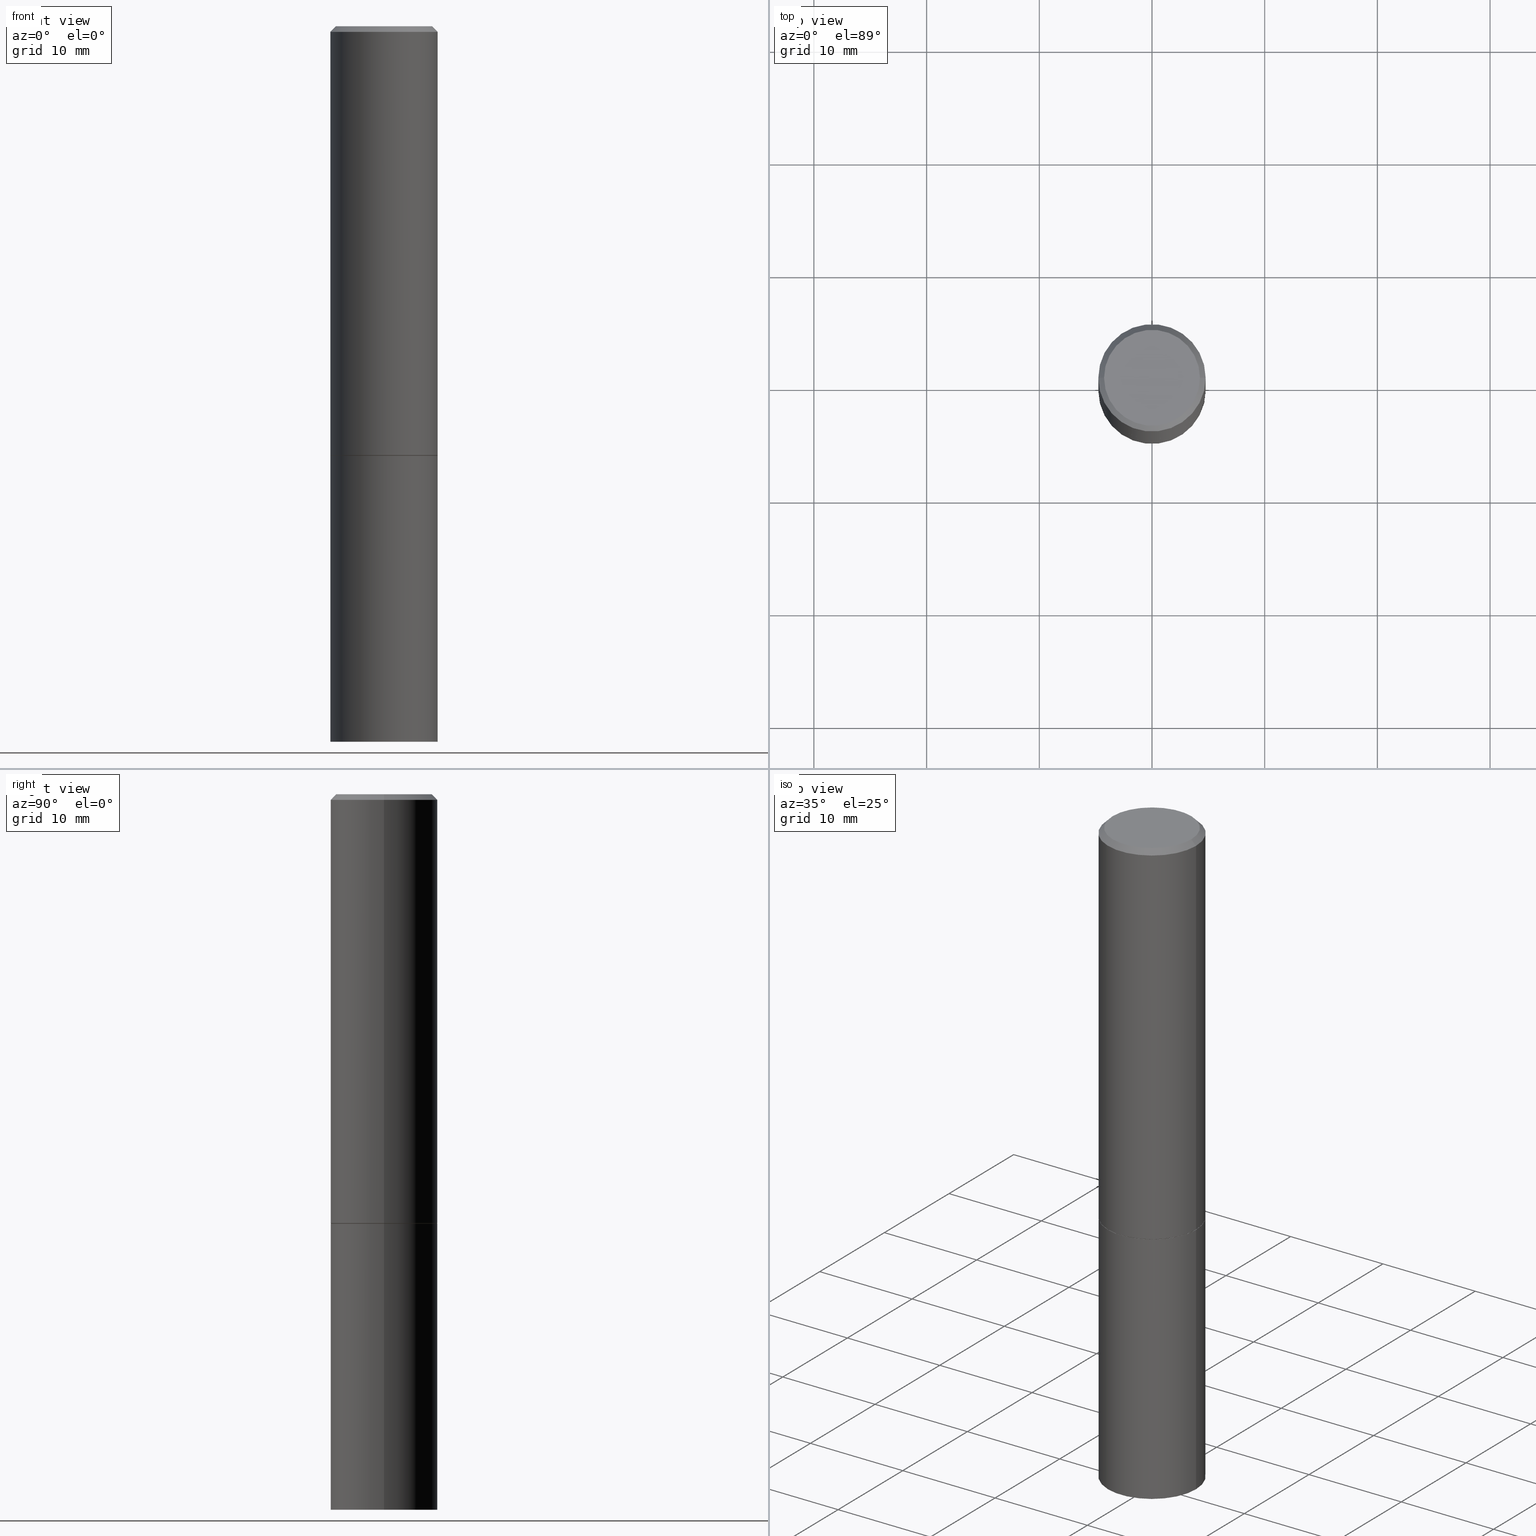
[diagram: canonical four-view strip — front | top / right | iso, engineering-drawing reading convention]
A machine part, canonical four-view strip (front | top / right | iso — engineering-drawing reading convention). The complete STEP part file that produces these views, byte-faithful:
ISO-10303-21;
HEADER;
FILE_DESCRIPTION (( 'STEP AP203' ),
    '1' );
FILE_NAME ('34624.STEP',
    '2024-02-27T16:29:27',
    ( '' ),
    ( '' ),
    'SwSTEP 2.0',
    'SolidWorks 2023',
    '' );
FILE_SCHEMA (( 'CONFIG_CONTROL_DESIGN' ));
ENDSEC;

DATA;
#1 = DIRECTION ( 'NONE',  ( 2.445468806185136597E-29, -3.491481338843145583E-15, -1.000000000000000000 ) ) ;
#2 = VECTOR ( 'NONE', #286, 39.37007874015748143 ) ;
#3 = DIRECTION ( 'NONE',  ( -2.445468806185136597E-29, 3.491481338843145583E-15, 1.000000000000000000 ) ) ;
#4 = DIRECTION ( 'NONE',  ( -2.445468806185136597E-29, 3.491481338843145583E-15, 1.000000000000000000 ) ) ;
#5 = DIRECTION ( 'NONE',  ( 2.438088387897960049E-29, -3.491481338843145188E-15, -1.000000000000000000 ) ) ;
#6 = CARTESIAN_POINT ( 'NONE',  ( 0.000000000000000000, 0.000000000000000000, 0.000000000000000000 ) ) ;
#7 = CIRCLE ( 'NONE', #261, 0.1864999999999999714 ) ;
#8 = EDGE_LOOP ( 'NONE', ( #242, #91, #341, #100 ) ) ;
#9 = CIRCLE ( 'NONE', #154, 0.1875000000000000278 ) ;
#10 = CARTESIAN_POINT ( 'NONE',  ( 0.000000000000000000, 0.000000000000000000, 0.000000000000000000 ) ) ;
#11 = CARTESIAN_POINT ( 'NONE',  ( 0.000000000000000000, 0.000000000000000000, 0.000000000000000000 ) ) ;
#12 = DIRECTION ( 'NONE',  ( -2.445468806185136597E-29, 3.491481338843145583E-15, 1.000000000000000000 ) ) ;
#13 = AXIS2_PLACEMENT_3D ( 'NONE', #150, #102, #164 ) ;
#14 = DIRECTION ( 'NONE',  ( -2.445468806185136597E-29, 3.491481338843145583E-15, 1.000000000000000000 ) ) ;
#15 = DIRECTION ( 'NONE',  ( -2.445468806185136597E-29, 3.491481338843145583E-15, 1.000000000000000000 ) ) ;
#16 = MANIFOLD_SOLID_BREP ( 'Body-Move/Copy2[2]', #41 ) ;
#17 = COORDINATED_UNIVERSAL_TIME_OFFSET ( 5, 0, .BEHIND. ) ;
#18 = MANIFOLD_SOLID_BREP ( 'Body-Move/Copy2[1]', #198 ) ;
#19 = DIRECTION ( 'NONE',  ( -2.445468806185136597E-29, 3.491481338843145583E-15, 1.000000000000000000 ) ) ;
#20 = VERTEX_POINT ( 'NONE', #285 ) ;
#21 = COORDINATED_UNIVERSAL_TIME_OFFSET ( 5, 0, .BEHIND. ) ;
#22 = ORIENTED_EDGE ( 'NONE', *, *, #232, .T. ) ;
#23 = ORGANIZATION ( 'UNSPECIFIED', 'UNSPECIFIED', '' ) ;
#24 = PLANE ( 'NONE',  #282 ) ;
#25 = ORIENTED_EDGE ( 'NONE', *, *, #352, .T. ) ;
#26 = APPROVAL_STATUS ( 'not_yet_approved' ) ;
#27 = CALENDAR_DATE ( 2024, 27, 2 ) ;
#28 = EDGE_CURVE ( 'NONE', #152, #326, #153, .T. ) ;
#29 = CIRCLE ( 'NONE', #62, 0.1864999999999999714 ) ;
#30 = FACE_OUTER_BOUND ( 'NONE', #131, .T. ) ;
#31 = AXIS2_PLACEMENT_3D ( 'NONE', #115, #87, #276 ) ;
#32 = CARTESIAN_POINT ( 'NONE',  ( 0.1875000000000000278, -6.546527510330893974E-15, -1.500000000000000222 ) ) ;
#33 = ADVANCED_FACE ( 'NONE', ( #315 ), #63, .F. ) ;
#34 = LINE ( 'NONE', #345, #228 ) ;
#35 = AXIS2_PLACEMENT_3D ( 'NONE', #296, #1, #172 ) ;
#36 = LOCAL_TIME ( 11, 29, 27.00000000000000000, #17 ) ;
#37 = CARTESIAN_POINT ( 'NONE',  ( -0.1864999999999999714, -3.912059806072132914E-15, -1.500000000000000444 ) ) ;
#38 = DIRECTION ( 'NONE',  ( 0.7071067811865466846, -7.319954787623252890E-15, -0.7071067811865483499 ) ) ;
#39 = LINE ( 'NONE', #95, #2 ) ;
#40 = ORIENTED_EDGE ( 'NONE', *, *, #308, .F. ) ;
#41 = CLOSED_SHELL ( 'NONE', ( #304, #42, #114, #202, #279, #243, #55, #267 ) ) ;
#42 = ADVANCED_FACE ( 'NONE', ( #353 ), #99, .T. ) ;
#43 = DIRECTION ( 'NONE',  ( 2.438088387897960049E-29, -3.491481338843145188E-15, -1.000000000000000000 ) ) ;
#44 = EDGE_LOOP ( 'NONE', ( #71, #104 ) ) ;
#45 = DIMENSIONAL_EXPONENTS ( 1.000000000000000000, 0.000000000000000000, 0.000000000000000000, 0.000000000000000000, 0.000000000000000000, 0.000000000000000000, 0.000000000000000000 ) ;
#46 = DIRECTION ( 'NONE',  ( -2.438088387897960049E-29, 3.491481338843145188E-15, 1.000000000000000000 ) ) ;
#47 = VERTEX_POINT ( 'NONE', #361 ) ;
#48 = CC_DESIGN_DATE_AND_TIME_ASSIGNMENT ( #52, #222, ( #170 ) ) ;
#49 = DIRECTION ( 'NONE',  ( 0.7071067811864388819, -2.468850131081119129E-15, 0.7071067811866561525 ) ) ;
#50 = EDGE_LOOP ( 'NONE', ( #218, #123, #96, #236 ) ) ;
#51 = LOCAL_TIME ( 11, 29, 27.00000000000000000, #127 ) ;
#52 = DATE_AND_TIME ( #27, #205 ) ;
#53 = CARTESIAN_POINT ( 'NONE',  ( 3.668203209277706016E-29, -5.237222008264719754E-15, -1.500000000000000444 ) ) ;
#54 = PERSON_AND_ORGANIZATION_ROLE ( 'design_supplier' ) ;
#55 = ADVANCED_FACE ( 'NONE', ( #305 ), #24, .F. ) ;
#56 = DIRECTION ( 'NONE',  ( 1.000000000000000000, 0.000000000000000000, 0.000000000000000000 ) ) ;
#57 = CC_DESIGN_APPROVAL ( #135, ( #170 ) ) ;
#58 = APPROVAL_DATE_TIME ( #337, #344 ) ;
#59 = APPLICATION_CONTEXT ( 'configuration controlled 3d designs of mechanical parts and assemblies' ) ;
#60 = DIRECTION ( 'NONE',  ( 1.000000000000000000, -6.982962677686266711E-15, 4.876176775795936914E-29 ) ) ;
#61 = FACE_OUTER_BOUND ( 'NONE', #350, .T. ) ;
#62 = AXIS2_PLACEMENT_3D ( 'NONE', #288, #128, #239 ) ;
#63 = PLANE ( 'NONE',  #290 ) ;
#64 = CC_DESIGN_PERSON_AND_ORGANIZATION_ASSIGNMENT ( #332, #199, ( #201 ) ) ;
#65 = CYLINDRICAL_SURFACE ( 'NONE', #107, 0.1875000000000000278 ) ;
#66 =( NAMED_UNIT ( * ) PLANE_ANGLE_UNIT ( ) SI_UNIT ( $, .RADIAN. ) );
#67 = VECTOR ( 'NONE', #312, 39.37007874015748143 ) ;
#68 = CC_DESIGN_PERSON_AND_ORGANIZATION_ASSIGNMENT ( #134, #268, ( #359 ) ) ;
#69 = ORIENTED_EDGE ( 'NONE', *, *, #272, .F. ) ;
#70 = FACE_OUTER_BOUND ( 'NONE', #8, .T. ) ;
#71 = ORIENTED_EDGE ( 'NONE', *, *, #351, .T. ) ;
#72 =( LENGTH_UNIT ( ) NAMED_UNIT ( * ) SI_UNIT ( $, .METRE. ) );
#73 = VERTEX_POINT ( 'NONE', #133 ) ;
#74 = CONICAL_SURFACE ( 'NONE', #35, 0.1874999999999998057, 0.7853981633974471688 ) ;
#75 = EDGE_LOOP ( 'NONE', ( #321, #25, #163, #317 ) ) ;
#76 = DIRECTION ( 'NONE',  ( -1.000000000000000000, 6.982962677686265922E-15, -4.876176775795935793E-29 ) ) ;
#77 = PERSON_AND_ORGANIZATION_ROLE ( 'classification_officer' ) ;
#78 = ORIENTED_EDGE ( 'NONE', *, *, #94, .T. ) ;
#79 = PERSON_AND_ORGANIZATION ( #254, #23 ) ;
#80 = CARTESIAN_POINT ( 'NONE',  ( 0.000000000000000000, 0.000000000000000000, 0.000000000000000000 ) ) ;
#81 = AXIS2_PLACEMENT_3D ( 'NONE', #313, #203, #204 ) ;
#82 = APPLICATION_PROTOCOL_DEFINITION ( 'international standard', 'config_control_design', 1994, #196 ) ;
#83 = PERSON_AND_ORGANIZATION ( #254, #23 ) ;
#84 = AXIS2_PLACEMENT_3D ( 'NONE', #85, #280, #86 ) ;
#85 = CARTESIAN_POINT ( 'NONE',  ( 0.000000000000000000, 0.000000000000000000, 0.000000000000000000 ) ) ;
#86 = DIRECTION ( 'NONE',  ( 1.000000000000000000, -6.982962677686266711E-15, 4.876176775795936914E-29 ) ) ;
#87 = DIRECTION ( 'NONE',  ( -2.445468806185136597E-29, 3.491481338843145583E-15, 1.000000000000000000 ) ) ;
#88 = AXIS2_PLACEMENT_3D ( 'NONE', #138, #105, #331 ) ;
#89 = FACE_OUTER_BOUND ( 'NONE', #190, .T. ) ;
#90 = CARTESIAN_POINT ( 'NONE',  ( 1.169646248512448412E-15, 0.1674999999999998157, -5.848231242562262767E-16 ) ) ;
#91 = ORIENTED_EDGE ( 'NONE', *, *, #185, .T. ) ;
#92 = AXIS2_PLACEMENT_3D ( 'NONE', #340, #146, #251 ) ;
#93 = FACE_OUTER_BOUND ( 'NONE', #166, .T. ) ;
#94 = EDGE_CURVE ( 'NONE', #73, #195, #193, .T. ) ;
#95 = CARTESIAN_POINT ( 'NONE',  ( 0.1875000000000000278, -1.309305502066175008E-15, 9.142831454617381013E-30 ) ) ;
#96 = ORIENTED_EDGE ( 'NONE', *, *, #28, .F. ) ;
#97 = CARTESIAN_POINT ( 'NONE',  ( -0.1674999999999998157, 1.204561061900879272E-15, -8.301862719484101980E-30 ) ) ;
#98 = ORIENTED_EDGE ( 'NONE', *, *, #248, .T. ) ;
#99 = CYLINDRICAL_SURFACE ( 'NONE', #88, 0.1874999999999999167 ) ;
#100 = ORIENTED_EDGE ( 'NONE', *, *, #363, .F. ) ;
#101 = VECTOR ( 'NONE', #246, 39.37007874015748143 ) ;
#102 = DIRECTION ( 'NONE',  ( -2.445468806185136597E-29, 3.491481338843145583E-15, 1.000000000000000000 ) ) ;
#103 = CIRCLE ( 'NONE', #122, 0.1875000000000000278 ) ;
#104 = ORIENTED_EDGE ( 'NONE', *, *, #363, .T. ) ;
#105 = DIRECTION ( 'NONE',  ( -2.445468806185136597E-29, 3.491481338843145583E-15, 1.000000000000000000 ) ) ;
#106 = APPROVAL_STATUS ( 'not_yet_approved' ) ;
#107 = AXIS2_PLACEMENT_3D ( 'NONE', #10, #19, #159 ) ;
#108 = EDGE_CURVE ( 'NONE', #195, #47, #141, .T. ) ;
#109 = CALENDAR_DATE ( 2024, 27, 2 ) ;
#110 = ADVANCED_FACE ( 'NONE', ( #89 ), #130, .T. ) ;
#111 = DIRECTION ( 'NONE',  ( 1.000000000000000000, -6.982962677686266711E-15, 0.000000000000000000 ) ) ;
#112 = CARTESIAN_POINT ( 'NONE',  ( 6.113672015462842613E-29, -8.728703347107864943E-15, -2.500000000000000000 ) ) ;
#113 = DIRECTION ( 'NONE',  ( -2.445468806185136597E-29, 3.491481338843145583E-15, 1.000000000000000000 ) ) ;
#114 = ADVANCED_FACE ( 'NONE', ( #192 ), #74, .T. ) ;
#115 = CARTESIAN_POINT ( 'NONE',  ( 4.890937612370283668E-31, -6.982962677686305168E-17, -0.02000000000000004205 ) ) ;
#116 = DIRECTION ( 'NONE',  ( -1.000000000000000000, 6.982962677686265922E-15, -4.876176775795935793E-29 ) ) ;
#117 = DIRECTION ( 'NONE',  ( 1.000000000000000000, -6.982962677686266711E-15, 0.000000000000000000 ) ) ;
#118 = LINE ( 'NONE', #262, #244 ) ;
#119 = ORIENTED_EDGE ( 'NONE', *, *, #336, .F. ) ;
#120 = CARTESIAN_POINT ( 'NONE',  ( 0.1875000000000000278, -1.003800884917403995E-14, -2.500000000000000000 ) ) ;
#121 = DIRECTION ( 'NONE',  ( -2.445468806185136877E-29, 3.491481338843145188E-15, 1.000000000000000000 ) ) ;
#122 = AXIS2_PLACEMENT_3D ( 'NONE', #231, #216, #347 ) ;
#123 = ORIENTED_EDGE ( 'NONE', *, *, #333, .T. ) ;
#124 = DIRECTION ( 'NONE',  ( 1.000000000000000000, -6.982962677686266711E-15, 0.000000000000000000 ) ) ;
#125 = CARTESIAN_POINT ( 'NONE',  ( -0.1864999999999999714, -3.906761351723910512E-15, -1.500000000000000444 ) ) ;
#126 = ORIENTED_EDGE ( 'NONE', *, *, #185, .F. ) ;
#127 = COORDINATED_UNIVERSAL_TIME_OFFSET ( 5, 0, .BEHIND. ) ;
#128 = DIRECTION ( 'NONE',  ( -2.445468806185136597E-29, 3.491481338843145583E-15, 1.000000000000000000 ) ) ;
#129 = ORIENTED_EDGE ( 'NONE', *, *, #169, .T. ) ;
#130 = PLANE ( 'NONE',  #221 ) ;
#131 = EDGE_LOOP ( 'NONE', ( #295, #182, #78, #210 ) ) ;
#132 = CC_DESIGN_APPROVAL ( #344, ( #142 ) ) ;
#133 = CARTESIAN_POINT ( 'NONE',  ( 0.1864999999999999714, -6.539544547653208748E-15, -1.500000000000000444 ) ) ;
#134 = PERSON_AND_ORGANIZATION ( #254, #23 ) ;
#135 = APPROVAL ( #26, 'UNSPECIFIED' ) ;
#136 = ORIENTED_EDGE ( 'NONE', *, *, #200, .T. ) ;
#137 = ADVANCED_BREP_SHAPE_REPRESENTATION ( '34624', ( #18, #16, #360 ), #181 ) ;
#138 = CARTESIAN_POINT ( 'NONE',  ( 0.000000000000000000, 0.000000000000000000, 0.000000000000000000 ) ) ;
#139 = APPROVAL_DATE_TIME ( #168, #322 ) ;
#140 = MECHANICAL_CONTEXT ( 'NONE', #59, 'mechanical' ) ;
#141 = CIRCLE ( 'NONE', #13, 0.1875000000000000278 ) ;
#142 = SECURITY_CLASSIFICATION ( '', '', #274 ) ;
#143 = EDGE_CURVE ( 'NONE', #252, #20, #253, .T. ) ;
#144 = DATE_TIME_ROLE ( 'classification_date' ) ;
#145 = CARTESIAN_POINT ( 'NONE',  ( 0.1875000000000000278, -6.543036028992050967E-15, -1.499000000000000110 ) ) ;
#146 = DIRECTION ( 'NONE',  ( 2.445468806185136597E-29, -3.491481338843145583E-15, -1.000000000000000000 ) ) ;
#147 = AXIS2_PLACEMENT_3D ( 'NONE', #230, #179, #265 ) ;
#148 = PERSON_AND_ORGANIZATION ( #254, #23 ) ;
#149 = CC_DESIGN_DATE_AND_TIME_ASSIGNMENT ( #250, #144, ( #142 ) ) ;
#150 = CARTESIAN_POINT ( 'NONE',  ( 3.665757740471519853E-29, -5.233730526925875958E-15, -1.499000000000000110 ) ) ;
#151 = CARTESIAN_POINT ( 'NONE',  ( 1.309305502066211690E-15, 0.1874999999999947820, -1.500000000000000666 ) ) ;
#152 = VERTEX_POINT ( 'NONE', #223 ) ;
#153 = CIRCLE ( 'NONE', #255, 0.1874999999999998057 ) ;
#154 = AXIS2_PLACEMENT_3D ( 'NONE', #235, #15, #354 ) ;
#155 = UNCERTAINTY_MEASURE_WITH_UNIT (LENGTH_MEASURE( 1.000000000000000082E-05 ), #319, 'distance_accuracy_value', 'NONE');
#156 = CYLINDRICAL_SURFACE ( 'NONE', #330, 0.1874999999999999167 ) ;
#157 = FACE_OUTER_BOUND ( 'NONE', #75, .T. ) ;
#158 = VECTOR ( 'NONE', #211, 39.37007874015748143 ) ;
#159 = DIRECTION ( 'NONE',  ( 1.000000000000000000, -6.982962677686265922E-15, 4.876176775795935793E-29 ) ) ;
#160 = CC_DESIGN_PERSON_AND_ORGANIZATION_ASSIGNMENT ( #194, #197, ( #170 ) ) ;
#161 = EDGE_LOOP ( 'NONE', ( #298, #269, #240, #362 ) ) ;
#162 = DIRECTION ( 'NONE',  ( -2.445468806185136877E-29, 3.491481338843145188E-15, 1.000000000000000000 ) ) ;
#163 = ORIENTED_EDGE ( 'NONE', *, *, #346, .T. ) ;
#164 = DIRECTION ( 'NONE',  ( 1.000000000000000000, -6.982962677686266711E-15, 0.000000000000000000 ) ) ;
#165 = DIRECTION ( 'NONE',  ( 1.000000000000000000, -6.982962677686265922E-15, 4.876176775795935793E-29 ) ) ;
#166 = EDGE_LOOP ( 'NONE', ( #215, #217, #323, #238 ) ) ;
#167 = AXIS2_PLACEMENT_3D ( 'NONE', #90, #43, #186 ) ;
#168 = DATE_AND_TIME ( #334, #36 ) ;
#169 = EDGE_CURVE ( 'NONE', #187, #355, #325, .T. ) ;
#170 = PRODUCT_DEFINITION ( 'UNKNOWN', '', #201, #213 ) ;
#171 = CIRCLE ( 'NONE', #147, 0.1875000000000000278 ) ;
#172 = DIRECTION ( 'NONE',  ( -1.000000000000000000, 6.982962677686266711E-15, 0.000000000000000000 ) ) ;
#173 = EDGE_CURVE ( 'NONE', #270, #252, #233, .T. ) ;
#174 = CALENDAR_DATE ( 2024, 27, 2 ) ;
#175 = CARTESIAN_POINT ( 'NONE',  ( 0.000000000000000000, 0.000000000000000000, 0.000000000000000000 ) ) ;
#176 = CC_DESIGN_SECURITY_CLASSIFICATION ( #142, ( #201 ) ) ;
#177 = FACE_OUTER_BOUND ( 'NONE', #343, .T. ) ;
#178 = DIRECTION ( 'NONE',  ( -2.445468806185136597E-29, 3.491481338843145583E-15, 1.000000000000000000 ) ) ;
#179 = DIRECTION ( 'NONE',  ( -2.445468806185136597E-29, 3.491481338843145583E-15, 1.000000000000000000 ) ) ;
#180 = CONICAL_SURFACE ( 'NONE', #92, 0.1874999999999998057, 0.7853981633974471688 ) ;
#181 =( GEOMETRIC_REPRESENTATION_CONTEXT ( 3 ) GLOBAL_UNCERTAINTY_ASSIGNED_CONTEXT ( ( #155 ) ) GLOBAL_UNIT_ASSIGNED_CONTEXT ( ( #319, #66, #287 ) ) REPRESENTATION_CONTEXT ( 'NONE', 'WORKASPACE' ) );
#182 = ORIENTED_EDGE ( 'NONE', *, *, #308, .T. ) ;
#183 = CARTESIAN_POINT ( 'NONE',  ( 0.1874999999999998057, -1.356173001359023888E-15, -0.02000000000000004205 ) ) ;
#184 = PRODUCT_DEFINITION_SHAPE ( 'NONE', 'NONE',  #170 ) ;
#185 = EDGE_CURVE ( 'NONE', #252, #270, #299, .T. ) ;
#186 = DIRECTION ( 'NONE',  ( -1.000000000000000000, 6.982962677686265922E-15, -4.876176775795935793E-29 ) ) ;
#187 = VERTEX_POINT ( 'NONE', #339 ) ;
#188 = AXIS2_PLACEMENT_3D ( 'NONE', #342, #4, #111 ) ;
#189 = DIRECTION ( 'NONE',  ( 1.000000000000000000, -6.982962677686265922E-15, 4.876176775795935793E-29 ) ) ;
#190 = EDGE_LOOP ( 'NONE', ( #241, #126 ) ) ;
#191 = ORIENTED_EDGE ( 'NONE', *, *, #324, .F. ) ;
#192 = FACE_OUTER_BOUND ( 'NONE', #161, .T. ) ;
#193 = LINE ( 'NONE', #297, #338 ) ;
#194 = PERSON_AND_ORGANIZATION ( #254, #23 ) ;
#195 = VERTEX_POINT ( 'NONE', #145 ) ;
#196 = APPLICATION_CONTEXT ( 'configuration controlled 3d designs of mechanical parts and assemblies' ) ;
#197 = PERSON_AND_ORGANIZATION_ROLE ( 'creator' ) ;
#198 = CLOSED_SHELL ( 'NONE', ( #259, #110, #33, #335 ) ) ;
#199 = PERSON_AND_ORGANIZATION_ROLE ( 'creator' ) ;
#200 = EDGE_CURVE ( 'NONE', #355, #187, #275, .T. ) ;
#201 = PRODUCT_DEFINITION_FORMATION_WITH_SPECIFIED_SOURCE ( 'ANY', '', #359, .NOT_KNOWN. ) ;
#202 = ADVANCED_FACE ( 'NONE', ( #247 ), #180, .T. ) ;
#203 = DIRECTION ( 'NONE',  ( -2.445468806185136597E-29, 3.491481338843145583E-15, 1.000000000000000000 ) ) ;
#204 = DIRECTION ( 'NONE',  ( 1.000000000000000000, -6.982962677686269077E-15, 0.000000000000000000 ) ) ;
#205 = LOCAL_TIME ( 11, 29, 27.00000000000000000, #21 ) ;
#206 = CYLINDRICAL_SURFACE ( 'NONE', #318, 0.1875000000000000278 ) ;
#207 = CARTESIAN_POINT ( 'NONE',  ( 1.309305502066236145E-15, 0.1874999999999912847, -2.500000000000000444 ) ) ;
#208 = CC_DESIGN_PERSON_AND_ORGANIZATION_ASSIGNMENT ( #328, #77, ( #142 ) ) ;
#209 = CARTESIAN_POINT ( 'NONE',  ( -0.1874999999999998057, 1.239475875289310527E-15, -0.02000000000000004205 ) ) ;
#210 = ORIENTED_EDGE ( 'NONE', *, *, #352, .F. ) ;
#211 = DIRECTION ( 'NONE',  ( -0.7071067811864388819, 7.493145998869961307E-15, 0.7071067811866561525 ) ) ;
#212 = APPROVAL_PERSON_ORGANIZATION ( #294, #322, #300 ) ;
#213 = DESIGN_CONTEXT ( 'detailed design', #196, 'design' ) ;
#214 = DIRECTION ( 'NONE',  ( 1.000000000000000000, -6.982962677686269077E-15, 0.000000000000000000 ) ) ;
#215 = ORIENTED_EDGE ( 'NONE', *, *, #324, .T. ) ;
#216 = DIRECTION ( 'NONE',  ( -2.445468806185136597E-29, 3.491481338843145583E-15, 1.000000000000000000 ) ) ;
#217 = ORIENTED_EDGE ( 'NONE', *, *, #273, .T. ) ;
#218 = ORIENTED_EDGE ( 'NONE', *, *, #108, .T. ) ;
#219 = ORIENTED_EDGE ( 'NONE', *, *, #200, .F. ) ;
#220 = APPLICATION_PROTOCOL_DEFINITION ( 'international standard', 'config_control_design', 1994, #59 ) ;
#221 = AXIS2_PLACEMENT_3D ( 'NONE', #207, #327, #76 ) ;
#222 = DATE_TIME_ROLE ( 'creation_date' ) ;
#223 = CARTESIAN_POINT ( 'NONE',  ( 0.1874999999999998057, -1.356173001359023888E-15, -0.02000000000000004205 ) ) ;
#224 = CIRCLE ( 'NONE', #31, 0.1874999999999998057 ) ;
#225 = APPROVAL_STATUS ( 'not_yet_approved' ) ;
#226 = COORDINATED_UNIVERSAL_TIME_OFFSET ( 5, 0, .BEHIND. ) ;
#227 = LINE ( 'NONE', #311, #67 ) ;
#228 = VECTOR ( 'NONE', #121, 39.37007874015748143 ) ;
#229 = CARTESIAN_POINT ( 'NONE',  ( -0.1875000000000000278, -5.650695048136103317E-15, -2.500000000000000000 ) ) ;
#230 = CARTESIAN_POINT ( 'NONE',  ( 3.668203209277704895E-29, -5.237222008264718177E-15, -1.500000000000000222 ) ) ;
#231 = CARTESIAN_POINT ( 'NONE',  ( 3.668203209277704895E-29, -5.237222008264718177E-15, -1.500000000000000222 ) ) ;
#232 = EDGE_CURVE ( 'NONE', #326, #152, #224, .T. ) ;
#233 = CIRCLE ( 'NONE', #358, 0.1875000000000000278 ) ;
#234 = CARTESIAN_POINT ( 'NONE',  ( 4.890937612370283668E-31, -6.982962677686305168E-17, -0.02000000000000004205 ) ) ;
#235 = CARTESIAN_POINT ( 'NONE',  ( 3.665757740471519853E-29, -5.233730526925875958E-15, -1.499000000000000110 ) ) ;
#236 = ORIENTED_EDGE ( 'NONE', *, *, #346, .F. ) ;
#237 = LINE ( 'NONE', #183, #314 ) ;
#238 = ORIENTED_EDGE ( 'NONE', *, *, #94, .F. ) ;
#239 = DIRECTION ( 'NONE',  ( 1.000000000000000000, -6.982962677686269077E-15, 0.000000000000000000 ) ) ;
#240 = ORIENTED_EDGE ( 'NONE', *, *, #28, .T. ) ;
#241 = ORIENTED_EDGE ( 'NONE', *, *, #173, .F. ) ;
#242 = ORIENTED_EDGE ( 'NONE', *, *, #143, .F. ) ;
#243 = ADVANCED_FACE ( 'NONE', ( #30 ), #365, .T. ) ;
#244 = VECTOR ( 'NONE', #162, 39.37007874015748143 ) ;
#245 = APPROVAL_ROLE ( '' ) ;
#246 = DIRECTION ( 'NONE',  ( -2.445468806185136877E-29, 3.491481338843145188E-15, 1.000000000000000000 ) ) ;
#247 = FACE_OUTER_BOUND ( 'NONE', #329, .T. ) ;
#248 = EDGE_CURVE ( 'NONE', #355, #326, #227, .T. ) ;
#249 = CARTESIAN_POINT ( 'NONE',  ( -0.1875000000000000278, 1.332267629550188046E-15, -9.223003294227947991E-30 ) ) ;
#250 = DATE_AND_TIME ( #174, #51 ) ;
#251 = DIRECTION ( 'NONE',  ( -1.000000000000000000, 6.982962677686266711E-15, 0.000000000000000000 ) ) ;
#252 = VERTEX_POINT ( 'NONE', #229 ) ;
#253 = LINE ( 'NONE', #249, #101 ) ;
#254 = PERSON ( 'UNSPECIFIED', 'UNSPECIFIED', 'UNSPECIFIED', ('UNSPECIFIED'), ('UNSPECIFIED'), ('UNSPECIFIED') ) ;
#255 = AXIS2_PLACEMENT_3D ( 'NONE', #234, #14, #124 ) ;
#256 = CC_DESIGN_APPROVAL ( #322, ( #201 ) ) ;
#257 = ORIENTED_EDGE ( 'NONE', *, *, #351, .F. ) ;
#258 = DIRECTION ( 'NONE',  ( -2.445468806185136597E-29, 3.491481338843145583E-15, 1.000000000000000000 ) ) ;
#259 = ADVANCED_FACE ( 'NONE', ( #61 ), #206, .T. ) ;
#260 = CARTESIAN_POINT ( 'NONE',  ( 3.668203209277706016E-29, -5.237222008264719754E-15, -1.500000000000000444 ) ) ;
#261 = AXIS2_PLACEMENT_3D ( 'NONE', #349, #258, #356 ) ;
#262 = CARTESIAN_POINT ( 'NONE',  ( 0.1874999999999999167, -1.309305502066174219E-15, 9.142831454617375408E-30 ) ) ;
#263 = VERTEX_POINT ( 'NONE', #32 ) ;
#264 = APPROVAL_ROLE ( '' ) ;
#265 = DIRECTION ( 'NONE',  ( 1.000000000000000000, -6.982962677686266711E-15, 0.000000000000000000 ) ) ;
#266 = ORIENTED_EDGE ( 'NONE', *, *, #173, .T. ) ;
#267 = ADVANCED_FACE ( 'NONE', ( #177 ), #284, .F. ) ;
#268 = PERSON_AND_ORGANIZATION_ROLE ( 'design_owner' ) ;
#269 = ORIENTED_EDGE ( 'NONE', *, *, #336, .T. ) ;
#270 = VERTEX_POINT ( 'NONE', #120 ) ;
#271 = CALENDAR_DATE ( 2024, 27, 2 ) ;
#272 = EDGE_CURVE ( 'NONE', #270, #263, #39, .T. ) ;
#273 = EDGE_CURVE ( 'NONE', #293, #47, #316, .T. ) ;
#274 = SECURITY_CLASSIFICATION_LEVEL ( 'unclassified' ) ;
#275 = CIRCLE ( 'NONE', #84, 0.1674999999999998157 ) ;
#276 = DIRECTION ( 'NONE',  ( 1.000000000000000000, -6.982962677686266711E-15, 0.000000000000000000 ) ) ;
#277 = PRODUCT_RELATED_PRODUCT_CATEGORY ( 'detail', '', ( #359 ) ) ;
#278 = SHAPE_DEFINITION_REPRESENTATION ( #184, #137 ) ;
#279 = ADVANCED_FACE ( 'NONE', ( #157 ), #156, .T. ) ;
#280 = DIRECTION ( 'NONE',  ( -2.445468806185136597E-29, 3.491481338843145583E-15, 1.000000000000000000 ) ) ;
#281 = DIRECTION ( 'NONE',  ( 1.000000000000000000, -6.982962677686265922E-15, 4.876176775795935793E-29 ) ) ;
#282 = AXIS2_PLACEMENT_3D ( 'NONE', #53, #46, #165 ) ;
#283 = APPROVAL_PERSON_ORGANIZATION ( #148, #344, #245 ) ;
#284 = PLANE ( 'NONE',  #167 ) ;
#285 = CARTESIAN_POINT ( 'NONE',  ( -0.1875000000000000278, -5.650695048136103317E-15, -1.500000000000000222 ) ) ;
#286 = DIRECTION ( 'NONE',  ( -2.445468806185136877E-29, 3.491481338843145188E-15, 1.000000000000000000 ) ) ;
#287 =( NAMED_UNIT ( * ) SI_UNIT ( $, .STERADIAN. ) SOLID_ANGLE_UNIT ( ) );
#288 = CARTESIAN_POINT ( 'NONE',  ( 3.668203209277706016E-29, -5.237222008264719754E-15, -1.500000000000000444 ) ) ;
#289 = EDGE_LOOP ( 'NONE', ( #191, #40 ) ) ;
#290 = AXIS2_PLACEMENT_3D ( 'NONE', #151, #5, #116 ) ;
#291 = LOCAL_TIME ( 11, 29, 27.00000000000000000, #306 ) ;
#292 = LENGTH_MEASURE_WITH_UNIT ( LENGTH_MEASURE( 0.02539999999999999897 ), #72 );
#293 = VERTEX_POINT ( 'NONE', #125 ) ;
#294 = PERSON_AND_ORGANIZATION ( #254, #23 ) ;
#295 = ORIENTED_EDGE ( 'NONE', *, *, #273, .F. ) ;
#296 = CARTESIAN_POINT ( 'NONE',  ( 4.890937612370283668E-31, -6.982962677686305168E-17, -0.02000000000000004205 ) ) ;
#297 = CARTESIAN_POINT ( 'NONE',  ( 0.1864999999999999714, -6.539544547653208748E-15, -1.500000000000000444 ) ) ;
#298 = ORIENTED_EDGE ( 'NONE', *, *, #169, .F. ) ;
#299 = CIRCLE ( 'NONE', #188, 0.1875000000000000278 ) ;
#300 = APPROVAL_ROLE ( '' ) ;
#301 = CONICAL_SURFACE ( 'NONE', #348, 0.1864999999999999714, 0.7853981633972946241 ) ;
#302 = DIRECTION ( 'NONE',  ( 0.000000000000000000, 0.000000000000000000, 1.000000000000000000 ) ) ;
#303 = APPROVAL_PERSON_ORGANIZATION ( #79, #135, #264 ) ;
#304 = ADVANCED_FACE ( 'NONE', ( #93 ), #301, .T. ) ;
#305 = FACE_OUTER_BOUND ( 'NONE', #289, .T. ) ;
#306 = COORDINATED_UNIVERSAL_TIME_OFFSET ( 5, 0, .BEHIND. ) ;
#307 = APPROVAL_DATE_TIME ( #366, #135 ) ;
#308 = EDGE_CURVE ( 'NONE', #293, #73, #29, .T. ) ;
#309 = AXIS2_PLACEMENT_3D ( 'NONE', #6, #113, #60 ) ;
#310 = LOCAL_TIME ( 11, 29, 27.00000000000000000, #226 ) ;
#311 = CARTESIAN_POINT ( 'NONE',  ( -0.1874999999999998057, 1.239475875289310527E-15, -0.02000000000000004205 ) ) ;
#312 = DIRECTION ( 'NONE',  ( -0.7071067811865466846, 2.468850131082247989E-15, -0.7071067811865483499 ) ) ;
#313 = CARTESIAN_POINT ( 'NONE',  ( 3.668203209277706016E-29, -5.237222008264719754E-15, -1.500000000000000444 ) ) ;
#314 = VECTOR ( 'NONE', #38, 39.37007874015748143 ) ;
#315 = FACE_OUTER_BOUND ( 'NONE', #44, .T. ) ;
#316 = LINE ( 'NONE', #37, #158 ) ;
#317 = ORIENTED_EDGE ( 'NONE', *, *, #232, .F. ) ;
#318 = AXIS2_PLACEMENT_3D ( 'NONE', #175, #178, #281 ) ;
#319 =( CONVERSION_BASED_UNIT ( 'INCH', #292 ) LENGTH_UNIT ( ) NAMED_UNIT ( #45 ) );
#320 = DIRECTION ( 'NONE',  ( -2.445468806185136597E-29, 3.491481338843145583E-15, 1.000000000000000000 ) ) ;
#321 = ORIENTED_EDGE ( 'NONE', *, *, #333, .F. ) ;
#322 = APPROVAL ( #106, 'UNSPECIFIED' ) ;
#323 = ORIENTED_EDGE ( 'NONE', *, *, #108, .F. ) ;
#324 = EDGE_CURVE ( 'NONE', #73, #293, #7, .T. ) ;
#325 = CIRCLE ( 'NONE', #309, 0.1674999999999998157 ) ;
#326 = VERTEX_POINT ( 'NONE', #209 ) ;
#327 = DIRECTION ( 'NONE',  ( 2.438088387897960049E-29, -3.491481338843145188E-15, -1.000000000000000000 ) ) ;
#328 = PERSON_AND_ORGANIZATION ( #254, #23 ) ;
#329 = EDGE_LOOP ( 'NONE', ( #119, #219, #98, #22 ) ) ;
#330 = AXIS2_PLACEMENT_3D ( 'NONE', #11, #320, #189 ) ;
#331 = DIRECTION ( 'NONE',  ( 1.000000000000000000, -6.982962677686265922E-15, 4.876176775795935793E-29 ) ) ;
#332 = PERSON_AND_ORGANIZATION ( #254, #23 ) ;
#333 = EDGE_CURVE ( 'NONE', #47, #326, #34, .T. ) ;
#334 = CALENDAR_DATE ( 2024, 27, 2 ) ;
#335 = ADVANCED_FACE ( 'NONE', ( #70 ), #65, .T. ) ;
#336 = EDGE_CURVE ( 'NONE', #187, #152, #237, .T. ) ;
#337 = DATE_AND_TIME ( #109, #310 ) ;
#338 = VECTOR ( 'NONE', #49, 39.37007874015748143 ) ;
#339 = CARTESIAN_POINT ( 'NONE',  ( 0.1674999999999998157, -1.252653207992877105E-15, 8.469775550109232378E-30 ) ) ;
#340 = CARTESIAN_POINT ( 'NONE',  ( 4.890937612370283668E-31, -6.982962677686305168E-17, -0.02000000000000004205 ) ) ;
#341 = ORIENTED_EDGE ( 'NONE', *, *, #272, .T. ) ;
#342 = CARTESIAN_POINT ( 'NONE',  ( 6.113672015462842613E-29, -8.728703347107864943E-15, -2.500000000000000000 ) ) ;
#343 = EDGE_LOOP ( 'NONE', ( #136, #129 ) ) ;
#344 = APPROVAL ( #225, 'UNSPECIFIED' ) ;
#345 = CARTESIAN_POINT ( 'NONE',  ( -0.1874999999999999167, 1.332267629550187257E-15, -9.223003294227943787E-30 ) ) ;
#346 = EDGE_CURVE ( 'NONE', #195, #152, #118, .T. ) ;
#347 = DIRECTION ( 'NONE',  ( 1.000000000000000000, -6.982962677686266711E-15, 0.000000000000000000 ) ) ;
#348 = AXIS2_PLACEMENT_3D ( 'NONE', #260, #12, #214 ) ;
#349 = CARTESIAN_POINT ( 'NONE',  ( 3.668203209277706016E-29, -5.237222008264719754E-15, -1.500000000000000444 ) ) ;
#350 = EDGE_LOOP ( 'NONE', ( #266, #357, #257, #69 ) ) ;
#351 = EDGE_CURVE ( 'NONE', #263, #20, #171, .T. ) ;
#352 = EDGE_CURVE ( 'NONE', #47, #195, #9, .T. ) ;
#353 = FACE_OUTER_BOUND ( 'NONE', #50, .T. ) ;
#354 = DIRECTION ( 'NONE',  ( 1.000000000000000000, -6.982962677686266711E-15, 0.000000000000000000 ) ) ;
#355 = VERTEX_POINT ( 'NONE', #97 ) ;
#356 = DIRECTION ( 'NONE',  ( 1.000000000000000000, -6.982962677686269077E-15, 0.000000000000000000 ) ) ;
#357 = ORIENTED_EDGE ( 'NONE', *, *, #143, .T. ) ;
#358 = AXIS2_PLACEMENT_3D ( 'NONE', #112, #3, #117 ) ;
#359 = PRODUCT ( '34624', '34624', '', ( #140 ) ) ;
#360 = AXIS2_PLACEMENT_3D ( 'NONE', #80, #302, #56 ) ;
#361 = CARTESIAN_POINT ( 'NONE',  ( -0.1874999999999999722, -1.319512447301180399E-15, -1.499000000000000110 ) ) ;
#362 = ORIENTED_EDGE ( 'NONE', *, *, #248, .F. ) ;
#363 = EDGE_CURVE ( 'NONE', #20, #263, #103, .T. ) ;
#364 = CC_DESIGN_PERSON_AND_ORGANIZATION_ASSIGNMENT ( #83, #54, ( #201 ) ) ;
#365 = CONICAL_SURFACE ( 'NONE', #81, 0.1864999999999999714, 0.7853981633972946241 ) ;
#366 = DATE_AND_TIME ( #271, #291 ) ;
ENDSEC;
END-ISO-10303-21;
